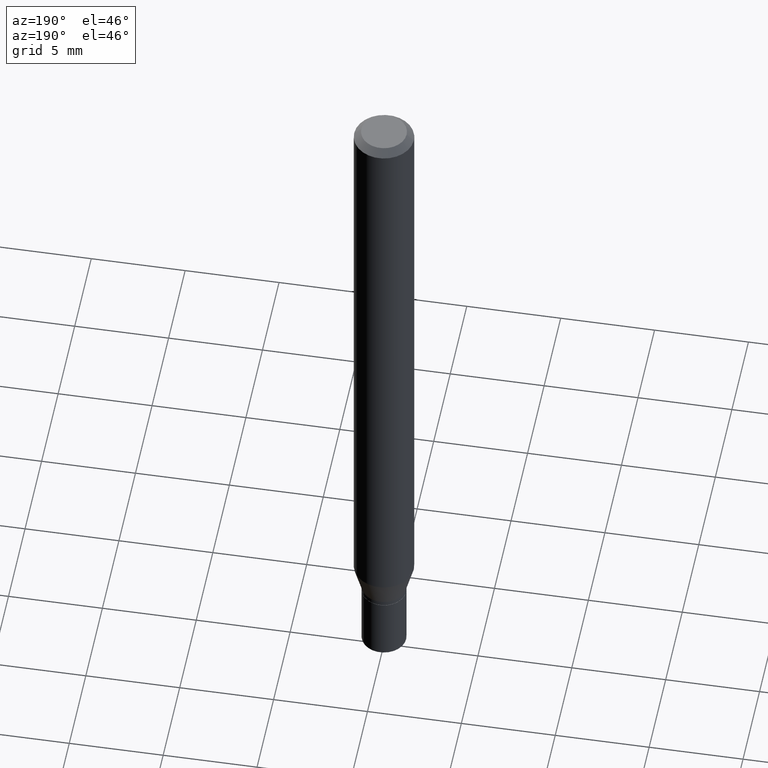
[diagram: clean part render]
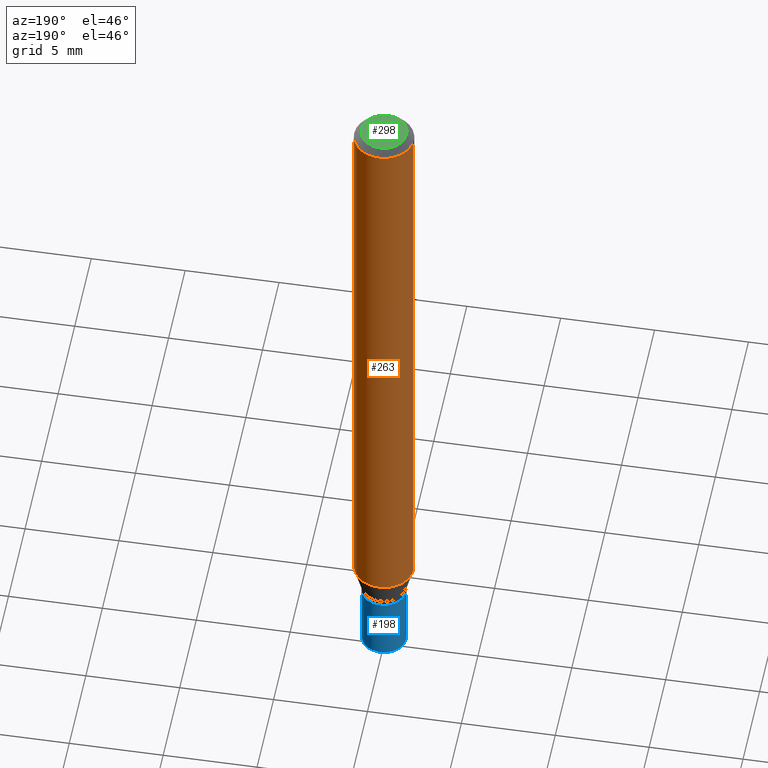
[diagram: same view with three faces highlighted in distinct colors, each labeled with its STEP entity id]
A machine part, auxiliary view with three faces highlighted in distinct colors.
Their STEP definitions:

[orange] entity #263 — the highlighted cylindrical surface (edge-blend (fillet) strip) has radius 1.5875 mm, axis along (-0, 0, 1).
#1 = AXIS2_PLACEMENT_3D ( 'NONE', #385, #238, #11 ) ;
#11 = DIRECTION ( 'NONE',  ( 1.000000000000000000, -6.982962677686266711E-15, 4.876176775795935793E-29 ) ) ;
#23 = ORIENTED_EDGE ( 'NONE', *, *, #356, .T. ) ;
#28 = VERTEX_POINT ( 'NONE', #328 ) ;
#49 = CIRCLE ( 'NONE', #89, 0.06250000000000000000 ) ;
#65 = VERTEX_POINT ( 'NONE', #288 ) ;
#89 = AXIS2_PLACEMENT_3D ( 'NONE', #104, #427, #107 ) ;
#91 = ORIENTED_EDGE ( 'NONE', *, *, #282, .F. ) ;
#95 = EDGE_LOOP ( 'NONE', ( #342, #23, #106, #91 ) ) ;
#97 = LINE ( 'NONE', #145, #456 ) ;
#104 = CARTESIAN_POINT ( 'NONE',  ( 3.155357067021810045E-29, -4.505013635434385811E-15, -1.290287187078897668 ) ) ;
#106 = ORIENTED_EDGE ( 'NONE', *, *, #216, .F. ) ;
#107 = DIRECTION ( 'NONE',  ( 1.000000000000000000, -6.982962677686262766E-15, 0.000000000000000000 ) ) ;
#121 = FACE_OUTER_BOUND ( 'NONE', #95, .T. ) ;
#126 = CARTESIAN_POINT ( 'NONE',  ( 0.06250000000000000000, -4.364351673553916694E-16, 3.047610484872459871E-30 ) ) ;
#136 = CARTESIAN_POINT ( 'NONE',  ( 3.668203209277705088E-31, -5.237222008264718399E-17, -0.01499999999999999944 ) ) ;
#138 = CIRCLE ( 'NONE', #403, 0.06250000000000000000 ) ;
#141 = DIRECTION ( 'NONE',  ( -2.445468806185136597E-29, 3.491481338843145583E-15, 1.000000000000000000 ) ) ;
#145 = CARTESIAN_POINT ( 'NONE',  ( -0.06250000000000000000, 4.440892098500626162E-16, -3.074334431409316114E-30 ) ) ;
#216 = EDGE_CURVE ( 'NONE', #65, #28, #138, .T. ) ;
#238 = DIRECTION ( 'NONE',  ( -2.445468806185136597E-29, 3.491481338843145583E-15, 1.000000000000000000 ) ) ;
#256 = CARTESIAN_POINT ( 'NONE',  ( -0.06250000000000000000, -4.060924425584323195E-15, -1.290287187078897668 ) ) ;
#263 = ADVANCED_FACE ( 'NONE', ( #121 ), #339, .T. ) ;
#282 = EDGE_CURVE ( 'NONE', #419, #65, #336, .T. ) ;
#287 = DIRECTION ( 'NONE',  ( 1.000000000000000000, -6.982962677686266711E-15, 0.000000000000000000 ) ) ;
#288 = CARTESIAN_POINT ( 'NONE',  ( 0.06250000000000000000, -4.888073874380388472E-16, -0.01499999999999999944 ) ) ;
#328 = CARTESIAN_POINT ( 'NONE',  ( -0.06250000000000000000, -1.834603717908453632E-15, -0.01499999999999999944 ) ) ;
#336 = LINE ( 'NONE', #126, #409 ) ;
#339 = CYLINDRICAL_SURFACE ( 'NONE', #1, 0.06250000000000000000 ) ;
#342 = ORIENTED_EDGE ( 'NONE', *, *, #380, .T. ) ;
#356 = EDGE_CURVE ( 'NONE', #422, #28, #97, .T. ) ;
#369 = DIRECTION ( 'NONE',  ( -2.445468806185136877E-29, 3.491481338843145188E-15, 1.000000000000000000 ) ) ;
#380 = EDGE_CURVE ( 'NONE', #419, #422, #49, .T. ) ;
#385 = CARTESIAN_POINT ( 'NONE',  ( 0.000000000000000000, 0.000000000000000000, 0.000000000000000000 ) ) ;
#403 = AXIS2_PLACEMENT_3D ( 'NONE', #136, #141, #287 ) ;
#409 = VECTOR ( 'NONE', #410, 39.37007874015748143 ) ;
#410 = DIRECTION ( 'NONE',  ( -2.445468806185136877E-29, 3.491481338843145188E-15, 1.000000000000000000 ) ) ;
#419 = VERTEX_POINT ( 'NONE', #438 ) ;
#422 = VERTEX_POINT ( 'NONE', #256 ) ;
#427 = DIRECTION ( 'NONE',  ( -2.445468806185136597E-29, 3.491481338843145583E-15, 1.000000000000000000 ) ) ;
#438 = CARTESIAN_POINT ( 'NONE',  ( 0.06250000000000000000, -4.941448802789777481E-15, -1.290287187078897668 ) ) ;
#456 = VECTOR ( 'NONE', #369, 39.37007874015748143 ) ;

[blue] entity #198 — the highlighted cylindrical surface (edge-blend (fillet) strip) has radius 1.1811 mm, axis along (-0, 0, 1).
#10 = EDGE_CURVE ( 'NONE', #72, #251, #38, .T. ) ;
#34 = DIRECTION ( 'NONE',  ( -2.445468806185136877E-29, 3.491481338843145188E-15, 1.000000000000000000 ) ) ;
#38 = LINE ( 'NONE', #177, #440 ) ;
#39 = EDGE_CURVE ( 'NONE', #270, #54, #175, .T. ) ;
#53 = DIRECTION ( 'NONE',  ( 1.000000000000000000, -6.982962677686267499E-15, 4.876176775795936353E-29 ) ) ;
#54 = VERTEX_POINT ( 'NONE', #290 ) ;
#72 = VERTEX_POINT ( 'NONE', #464 ) ;
#73 = AXIS2_PLACEMENT_3D ( 'NONE', #113, #118, #53 ) ;
#113 = CARTESIAN_POINT ( 'NONE',  ( 0.000000000000000000, 0.000000000000000000, 0.000000000000000000 ) ) ;
#114 = AXIS2_PLACEMENT_3D ( 'NONE', #323, #154, #307 ) ;
#118 = DIRECTION ( 'NONE',  ( -2.445468806185136597E-29, 3.491481338843145583E-15, 1.000000000000000000 ) ) ;
#134 = CARTESIAN_POINT ( 'NONE',  ( 3.325837576411786624E-29, -4.748414620826679034E-15, -1.360000000000000320 ) ) ;
#140 = CIRCLE ( 'NONE', #159, 0.04649999999999999967 ) ;
#144 = DIRECTION ( 'NONE',  ( -2.445468806185136877E-29, 3.491481338843145188E-15, 1.000000000000000000 ) ) ;
#154 = DIRECTION ( 'NONE',  ( -2.445468806185136597E-29, 3.491481338843145583E-15, 1.000000000000000000 ) ) ;
#159 = AXIS2_PLACEMENT_3D ( 'NONE', #134, #279, #353 ) ;
#169 = EDGE_CURVE ( 'NONE', #54, #251, #140, .T. ) ;
#175 = LINE ( 'NONE', #320, #343 ) ;
#177 = CARTESIAN_POINT ( 'NONE',  ( -0.04649999999999999967, 3.304023721284465841E-16, -2.287304816968531530E-30 ) ) ;
#189 = FACE_OUTER_BOUND ( 'NONE', #453, .T. ) ;
#198 = ADVANCED_FACE ( 'NONE', ( #189 ), #433, .T. ) ;
#251 = VERTEX_POINT ( 'NONE', #265 ) ;
#259 = ORIENTED_EDGE ( 'NONE', *, *, #39, .F. ) ;
#265 = CARTESIAN_POINT ( 'NONE',  ( -0.04649999999999999967, -4.662415942417251725E-15, -1.360000000000000320 ) ) ;
#270 = VERTEX_POINT ( 'NONE', #378 ) ;
#279 = DIRECTION ( 'NONE',  ( -2.445468806185136597E-29, 3.491481338843145583E-15, 1.000000000000000000 ) ) ;
#290 = CARTESIAN_POINT ( 'NONE',  ( 0.04649999999999999967, -5.073122385339090530E-15, -1.360000000000000320 ) ) ;
#305 = CIRCLE ( 'NONE', #114, 0.04649999999999999967 ) ;
#307 = DIRECTION ( 'NONE',  ( 1.000000000000000000, -6.982962677686260400E-15, 0.000000000000000000 ) ) ;
#318 = ORIENTED_EDGE ( 'NONE', *, *, #366, .T. ) ;
#320 = CARTESIAN_POINT ( 'NONE',  ( 0.04649999999999999967, -3.247077645124114474E-16, 2.267422200745110326E-30 ) ) ;
#323 = CARTESIAN_POINT ( 'NONE',  ( 3.668203209277704895E-29, -5.237222008264718177E-15, -1.500000000000000222 ) ) ;
#343 = VECTOR ( 'NONE', #144, 39.37007874015748143 ) ;
#353 = DIRECTION ( 'NONE',  ( 1.000000000000000000, -6.982962677686260400E-15, 0.000000000000000000 ) ) ;
#358 = ORIENTED_EDGE ( 'NONE', *, *, #169, .F. ) ;
#366 = EDGE_CURVE ( 'NONE', #270, #72, #305, .T. ) ;
#378 = CARTESIAN_POINT ( 'NONE',  ( 0.04649999999999999967, -5.561929772777129673E-15, -1.500000000000000222 ) ) ;
#418 = ORIENTED_EDGE ( 'NONE', *, *, #10, .T. ) ;
#433 = CYLINDRICAL_SURFACE ( 'NONE', #73, 0.04649999999999999967 ) ;
#440 = VECTOR ( 'NONE', #34, 39.37007874015748143 ) ;
#453 = EDGE_LOOP ( 'NONE', ( #318, #418, #358, #259 ) ) ;
#464 = CARTESIAN_POINT ( 'NONE',  ( -0.04649999999999999967, -4.662415942417251725E-15, -1.500000000000000222 ) ) ;

[green] entity #298 — the highlighted planar face has unit normal (0, -0, -1).
#8 = FACE_OUTER_BOUND ( 'NONE', #206, .T. ) ;
#13 = CIRCLE ( 'NONE', #16, 0.04749999999999999362 ) ;
#16 = AXIS2_PLACEMENT_3D ( 'NONE', #105, #32, #35 ) ;
#32 = DIRECTION ( 'NONE',  ( -2.445468806185136597E-29, 3.491481338843145583E-15, 1.000000000000000000 ) ) ;
#35 = DIRECTION ( 'NONE',  ( 1.000000000000000000, -6.982962677686267499E-15, 4.884662768193073002E-29 ) ) ;
#52 = CARTESIAN_POINT ( 'NONE',  ( -2.121106073929386760E-45, 3.028377322213383622E-31, 8.673617379884936499E-17 ) ) ;
#84 = DIRECTION ( 'NONE',  ( 1.000000000000000000, -6.982962677686267499E-15, 4.884662768193073002E-29 ) ) ;
#90 = ORIENTED_EDGE ( 'NONE', *, *, #239, .T. ) ;
#92 = DIRECTION ( 'NONE',  ( -2.445468806185136597E-29, 3.491481338843145583E-15, 1.000000000000000000 ) ) ;
#105 = CARTESIAN_POINT ( 'NONE',  ( -2.121106073929386760E-45, 3.028377322213383622E-31, 8.673617379884936499E-17 ) ) ;
#115 = CIRCLE ( 'NONE', #200, 0.04749999999999999362 ) ;
#135 = EDGE_CURVE ( 'NONE', #211, #395, #13, .T. ) ;
#157 = CARTESIAN_POINT ( 'NONE',  ( 3.316907271900976096E-16, 0.04749999999999999362, -1.224772766956247324E-16 ) ) ;
#158 = DIRECTION ( 'NONE',  ( -1.000000000000000000, 6.982962677686265922E-15, -4.876176775795935793E-29 ) ) ;
#200 = AXIS2_PLACEMENT_3D ( 'NONE', #52, #92, #84 ) ;
#206 = EDGE_LOOP ( 'NONE', ( #415, #90 ) ) ;
#211 = VERTEX_POINT ( 'NONE', #412 ) ;
#239 = EDGE_CURVE ( 'NONE', #395, #211, #115, .T. ) ;
#248 = CARTESIAN_POINT ( 'NONE',  ( 0.04749999999999999362, -4.035134999187577144E-16, 8.673617379885194112E-17 ) ) ;
#298 = ADVANCED_FACE ( 'NONE', ( #8 ), #446, .F. ) ;
#395 = VERTEX_POINT ( 'NONE', #248 ) ;
#412 = CARTESIAN_POINT ( 'NONE',  ( -0.04749999999999999362, 3.578768372314211985E-16, 8.673617379884694910E-17 ) ) ;
#415 = ORIENTED_EDGE ( 'NONE', *, *, #135, .T. ) ;
#446 = PLANE ( 'NONE',  #460 ) ;
#451 = DIRECTION ( 'NONE',  ( 2.438088387897960049E-29, -3.491481338843145188E-15, -1.000000000000000000 ) ) ;
#460 = AXIS2_PLACEMENT_3D ( 'NONE', #157, #451, #158 ) ;